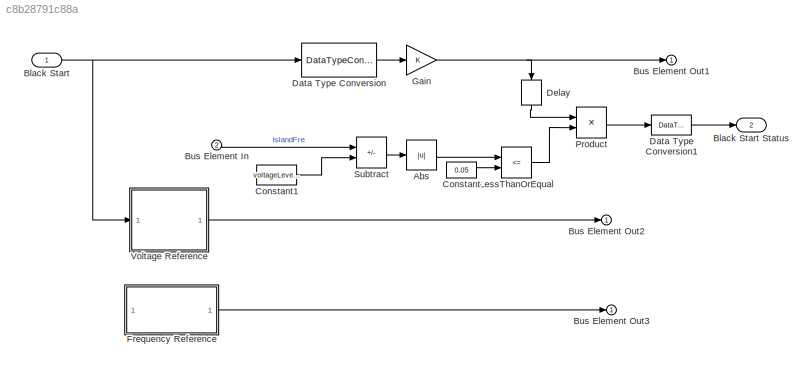
MODEL slx_c8b28791c88a
KIND model
CONFIG AbsTol = auto
CONFIG EnableMultiTasking = off
CONFIG FixedStep = Ts
CONFIG MaxStep = auto
CONFIG MinStep = auto
CONFIG RelTol = 1e-3
CONFIG SampleTimeConstraint = Unconstrained
CONFIG SolverName = FixedStepAuto
CONFIG StartTime = 0.0
CONFIG StopTime = 10.0
WORKSPACE source: mxarray member
WORKSPACE Ts = 0.001
WORKSPACE controllerBlackStart = 1
WORKSPACE delayLevel1 = 0
WORKSPACE delayLevel2 = 0
WORKSPACE delayLevel3 = 0
WORKSPACE referenceFrequency = 0
WORKSPACE voltageLevel1 = 0
WORKSPACE voltageLevel2 = 0
WORKSPACE voltageLevel3 = 0
BLOCK [Abs] Abs
  SaturateOnIntegerOverflow = off
BLOCK [Inport] Black Start
  OutDataTypeStr = boolean
BLOCK [Outport] Black Start Status
  Port = 2
BLOCK [Inport] Bus Element In
  Port = 2
BLOCK [Outport] Bus Element Out1
BLOCK [Outport] Bus Element Out2
BLOCK [Outport] Bus Element Out3
BLOCK [Constant] Constant
  Value = 0.05
BLOCK [Constant] Constant1
  Value = voltageLevel1+voltageLevel2+voltageLevel3
BLOCK [DataTypeConversion] Data Type Conversion
  OutDataTypeStr = double
  RndMeth = Floor
  SaturateOnIntegerOverflow = off
BLOCK [DataTypeConversion] Data Type Conversion1
  OutDataTypeStr = boolean
  RndMeth = Floor
  SaturateOnIntegerOverflow = off
BLOCK [Delay] Delay
  DelayLength = 10
  InputPortMap = u0
  NameLocation = left
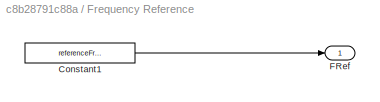
BLOCK [SubSystem] Frequency Reference
BLOCK [Constant] Frequency Reference/Constant1
  Value = referenceFrequency
BLOCK [Outport] Frequency Reference/FRef
BLOCK [Gain] Gain
BLOCK [RelationalOperator] LessThanOrEqual
  InputSameDT = off
  Operator = <=
  OutDataTypeStr = boolean
  RndMeth = Simplest
BLOCK [Product] Product
BLOCK [Sum] Subtract
  IconShape = rectangular
  Inputs = +-
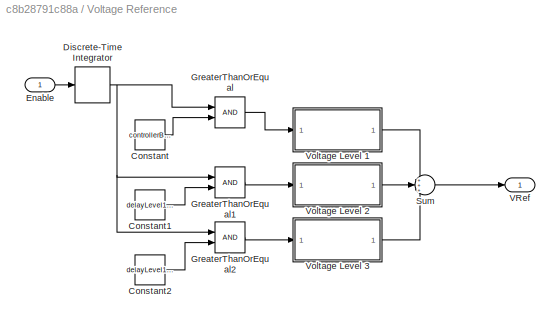
BLOCK [SubSystem] Voltage Reference
BLOCK [Constant] Voltage Reference/Constant
  Value = controllerBlackStart
BLOCK [Constant] Voltage Reference/Constant1
  Value = delayLevel1+controllerBlackStart
BLOCK [Constant] Voltage Reference/Constant2
  Value = delayLevel1+controllerBlackStart+delayLevel2
BLOCK [DiscreteIntegrator] Voltage Reference/Discrete-Time Integrator
  ICPrevOutput = DiscIntNeverNeededParam
  ICPrevScaledInput = DiscIntNeverNeededParam
  InitialConditionSetting = Auto
  OutDataTypeStr = double
  SampleTime = Ts
BLOCK [Inport] Voltage Reference/Enable
BLOCK [RelationalOperator] Voltage Reference/GreaterThanOrEqual
  InputSameDT = off
  OutDataTypeStr = boolean
  RndMeth = Simplest
BLOCK [RelationalOperator] Voltage Reference/GreaterThanOrEqual1
  InputSameDT = off
  OutDataTypeStr = boolean
  RndMeth = Simplest
BLOCK [RelationalOperator] Voltage Reference/GreaterThanOrEqual2
  InputSameDT = off
  OutDataTypeStr = boolean
  RndMeth = Simplest
BLOCK [Sum] Voltage Reference/Sum
  Inputs = +++
BLOCK [Outport] Voltage Reference/VRef
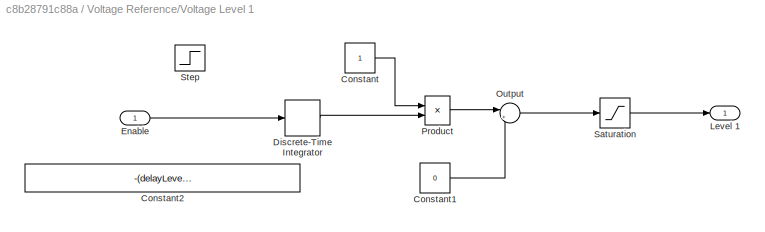
BLOCK [SubSystem] Voltage Reference/Voltage Level 1
BLOCK [Constant] Voltage Reference/Voltage Level 1/Constant
BLOCK [Constant] Voltage Reference/Voltage Level 1/Constant1
  Value = 0
BLOCK [Constant] Voltage Reference/Voltage Level 1/Constant2
  DisableCoverage = on
  OutDataTypeStr = Inherit: Inherit via back propagation
  SampleTime = Ts
  Value = -(delayLevel1)
BLOCK [DiscreteIntegrator] Voltage Reference/Voltage Level 1/Discrete-Time Integrator
  ICPrevOutput = DiscIntNeverNeededParam
  ICPrevScaledInput = DiscIntNeverNeededParam
  InitialConditionSetting = Auto
  OutDataTypeStr = double
  SampleTime = Ts
BLOCK [Inport] Voltage Reference/Voltage Level 1/Enable
BLOCK [Outport] Voltage Reference/Voltage Level 1/Level 1
BLOCK [Sum] Voltage Reference/Voltage Level 1/Output
  InputSameDT = on
  Inputs = |++
  OutDataTypeStr = Inherit: Same as first input
  SaturateOnIntegerOverflow = on
BLOCK [Product] Voltage Reference/Voltage Level 1/Product
  DisableCoverage = on
  InputSameDT = on
  OutDataTypeStr = Inherit: Same as first input
  SaturateOnIntegerOverflow = on
BLOCK [Saturate] Voltage Reference/Voltage Level 1/Saturation
  LowerLimit = 0
  UpperLimit = voltageLevel1
BLOCK [Step] Voltage Reference/Voltage Level 1/Step
  Commented = on
  DisableCoverage = on
  OutDataTypeStr = fixdt('double', 'DataTypeOverride', 'Off')
  SampleTime = Ts
  Time = controllerBlackStart+delayLevel1
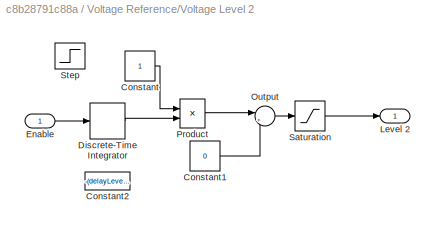
BLOCK [SubSystem] Voltage Reference/Voltage Level 2
BLOCK [Constant] Voltage Reference/Voltage Level 2/Constant
BLOCK [Constant] Voltage Reference/Voltage Level 2/Constant1
  Value = 0
BLOCK [Constant] Voltage Reference/Voltage Level 2/Constant2
  Commented = on
  DisableCoverage = on
  OutDataTypeStr = Inherit: Inherit via back propagation
  SampleTime = Ts
  Value = -(delayLevel2)
BLOCK [DiscreteIntegrator] Voltage Reference/Voltage Level 2/Discrete-Time Integrator
  ICPrevOutput = DiscIntNeverNeededParam
  ICPrevScaledInput = DiscIntNeverNeededParam
  InitialConditionSetting = Auto
  OutDataTypeStr = double
  SampleTime = Ts
BLOCK [Inport] Voltage Reference/Voltage Level 2/Enable
BLOCK [Outport] Voltage Reference/Voltage Level 2/Level 2
BLOCK [Sum] Voltage Reference/Voltage Level 2/Output
  InputSameDT = on
  Inputs = |++
  OutDataTypeStr = Inherit: Same as first input
  SaturateOnIntegerOverflow = on
BLOCK [Product] Voltage Reference/Voltage Level 2/Product
  DisableCoverage = on
  InputSameDT = on
  OutDataTypeStr = Inherit: Same as first input
  SaturateOnIntegerOverflow = on
BLOCK [Saturate] Voltage Reference/Voltage Level 2/Saturation
  LowerLimit = 0
  UpperLimit = voltageLevel2
BLOCK [Step] Voltage Reference/Voltage Level 2/Step
  Commented = on
  DisableCoverage = on
  OutDataTypeStr = fixdt('double', 'DataTypeOverride', 'Off')
  SampleTime = Ts
  Time = delayLevel1+delayLevel2
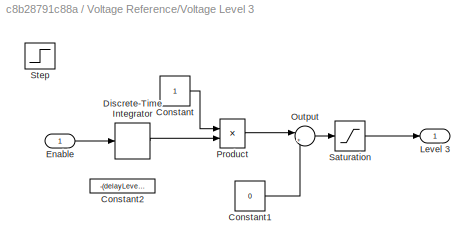
BLOCK [SubSystem] Voltage Reference/Voltage Level 3
BLOCK [Constant] Voltage Reference/Voltage Level 3/Constant
BLOCK [Constant] Voltage Reference/Voltage Level 3/Constant1
  Value = 0
BLOCK [Constant] Voltage Reference/Voltage Level 3/Constant2
  Commented = on
  DisableCoverage = on
  OutDataTypeStr = Inherit: Inherit via back propagation
  SampleTime = Ts
  Value = -(delayLevel3+delayLevel3)
BLOCK [DiscreteIntegrator] Voltage Reference/Voltage Level 3/Discrete-Time Integrator
  ICPrevOutput = DiscIntNeverNeededParam
  ICPrevScaledInput = DiscIntNeverNeededParam
  InitialConditionSetting = Auto
  OutDataTypeStr = double
  SampleTime = Ts
BLOCK [Inport] Voltage Reference/Voltage Level 3/Enable
BLOCK [Outport] Voltage Reference/Voltage Level 3/Level 3
BLOCK [Sum] Voltage Reference/Voltage Level 3/Output
  InputSameDT = on
  Inputs = |++
  OutDataTypeStr = Inherit: Same as first input
  SaturateOnIntegerOverflow = on
BLOCK [Product] Voltage Reference/Voltage Level 3/Product
  DisableCoverage = on
  InputSameDT = on
  OutDataTypeStr = Inherit: Same as first input
  SaturateOnIntegerOverflow = on
BLOCK [Saturate] Voltage Reference/Voltage Level 3/Saturation
  LowerLimit = 0
  UpperLimit = voltageLevel3
BLOCK [Step] Voltage Reference/Voltage Level 3/Step
  Commented = on
  DisableCoverage = on
  OutDataTypeStr = fixdt('double', 'DataTypeOverride', 'Off')
  SampleTime = Ts
  Time = delayLevel1+delayLevel2+delayLevel3
LINE Abs:1 -> LessThanOrEqual:1
NET Black Start:1 -> Data Type Conversion:1, Voltage Reference:1
LINE Bus Element In:1 -> Subtract:1
LINE Constant1:1 -> Subtract:2
LINE Constant:1 -> LessThanOrEqual:2
LINE Data Type Conversion1:1 -> Black Start Status:1
LINE Data Type Conversion:1 -> Gain:1
LINE Delay:1 -> Product:1
LINE Frequency Reference/Constant1:1 -> Frequency Reference/FRef:1
LINE Frequency Reference:1 -> Bus Element Out3:1
NET Gain:1 -> Bus Element Out1:1, Delay:1
LINE LessThanOrEqual:1 -> Product:2
LINE Product:1 -> Data Type Conversion1:1
LINE Subtract:1 -> Abs:1
LINE Voltage Reference/Constant1:1 -> Voltage Reference/GreaterThanOrEqual1:2
LINE Voltage Reference/Constant2:1 -> Voltage Reference/GreaterThanOrEqual2:2
LINE Voltage Reference/Constant:1 -> Voltage Reference/GreaterThanOrEqual:2
NET Voltage Reference/Discrete-Time Integrator:1 -> Voltage Reference/GreaterThanOrEqual1:1, Voltage Reference/GreaterThanOrEqual2:1, Voltage Reference/GreaterThanOrEqual:1
LINE Voltage Reference/Enable:1 -> Voltage Reference/Discrete-Time Integrator:1
LINE Voltage Reference/GreaterThanOrEqual1:1 -> Voltage Reference/Voltage Level 2:1
LINE Voltage Reference/GreaterThanOrEqual2:1 -> Voltage Reference/Voltage Level 3:1
LINE Voltage Reference/GreaterThanOrEqual:1 -> Voltage Reference/Voltage Level 1:1
LINE Voltage Reference/Sum:1 -> Voltage Reference/VRef:1
LINE Voltage Reference/Voltage Level 1/Constant1:1 -> Voltage Reference/Voltage Level 1/Output:2
LINE Voltage Reference/Voltage Level 1/Constant:1 -> Voltage Reference/Voltage Level 1/Product:1
LINE Voltage Reference/Voltage Level 1/Discrete-Time Integrator:1 -> Voltage Reference/Voltage Level 1/Product:2
LINE Voltage Reference/Voltage Level 1/Enable:1 -> Voltage Reference/Voltage Level 1/Discrete-Time Integrator:1
LINE Voltage Reference/Voltage Level 1/Output:1 -> Voltage Reference/Voltage Level 1/Saturation:1
LINE Voltage Reference/Voltage Level 1/Product:1 -> Voltage Reference/Voltage Level 1/Output:1
LINE Voltage Reference/Voltage Level 1/Saturation:1 -> Voltage Reference/Voltage Level 1/Level 1:1
LINE Voltage Reference/Voltage Level 1:1 -> Voltage Reference/Sum:1
LINE Voltage Reference/Voltage Level 2/Constant1:1 -> Voltage Reference/Voltage Level 2/Output:2
LINE Voltage Reference/Voltage Level 2/Constant:1 -> Voltage Reference/Voltage Level 2/Product:1
LINE Voltage Reference/Voltage Level 2/Discrete-Time Integrator:1 -> Voltage Reference/Voltage Level 2/Product:2
LINE Voltage Reference/Voltage Level 2/Enable:1 -> Voltage Reference/Voltage Level 2/Discrete-Time Integrator:1
LINE Voltage Reference/Voltage Level 2/Output:1 -> Voltage Reference/Voltage Level 2/Saturation:1
LINE Voltage Reference/Voltage Level 2/Product:1 -> Voltage Reference/Voltage Level 2/Output:1
LINE Voltage Reference/Voltage Level 2/Saturation:1 -> Voltage Reference/Voltage Level 2/Level 2:1
LINE Voltage Reference/Voltage Level 2:1 -> Voltage Reference/Sum:2
LINE Voltage Reference/Voltage Level 3/Constant1:1 -> Voltage Reference/Voltage Level 3/Output:2
LINE Voltage Reference/Voltage Level 3/Constant:1 -> Voltage Reference/Voltage Level 3/Product:1
LINE Voltage Reference/Voltage Level 3/Discrete-Time Integrator:1 -> Voltage Reference/Voltage Level 3/Product:2
LINE Voltage Reference/Voltage Level 3/Enable:1 -> Voltage Reference/Voltage Level 3/Discrete-Time Integrator:1
LINE Voltage Reference/Voltage Level 3/Output:1 -> Voltage Reference/Voltage Level 3/Saturation:1
LINE Voltage Reference/Voltage Level 3/Product:1 -> Voltage Reference/Voltage Level 3/Output:1
LINE Voltage Reference/Voltage Level 3/Saturation:1 -> Voltage Reference/Voltage Level 3/Level 3:1
LINE Voltage Reference/Voltage Level 3:1 -> Voltage Reference/Sum:3
LINE Voltage Reference:1 -> Bus Element Out2:1
note: NET lines group one-source signal fan-out (src -> all destinations, sorted); 1:1 wires keep LINE
